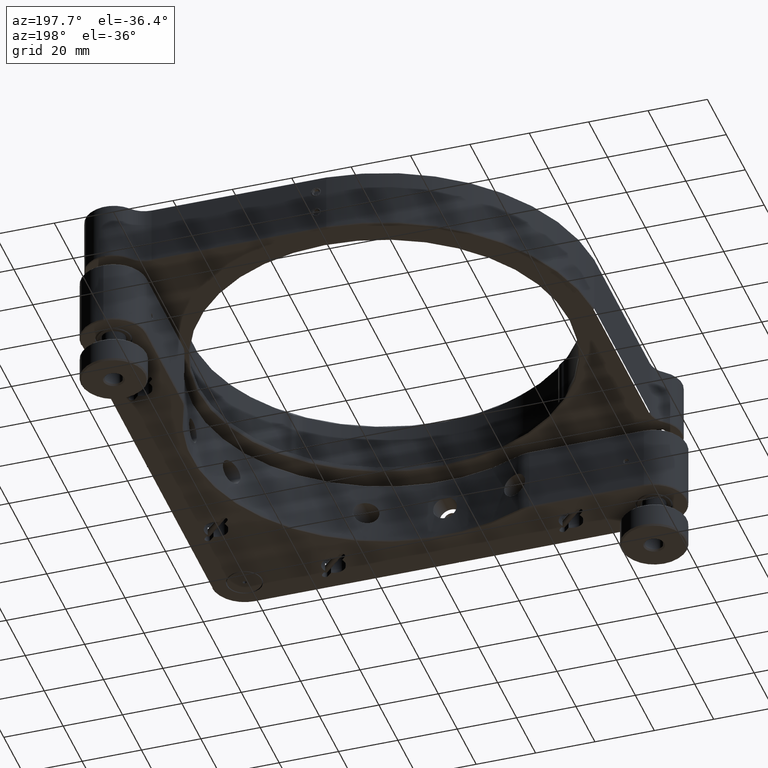
[diagram: clean part render]
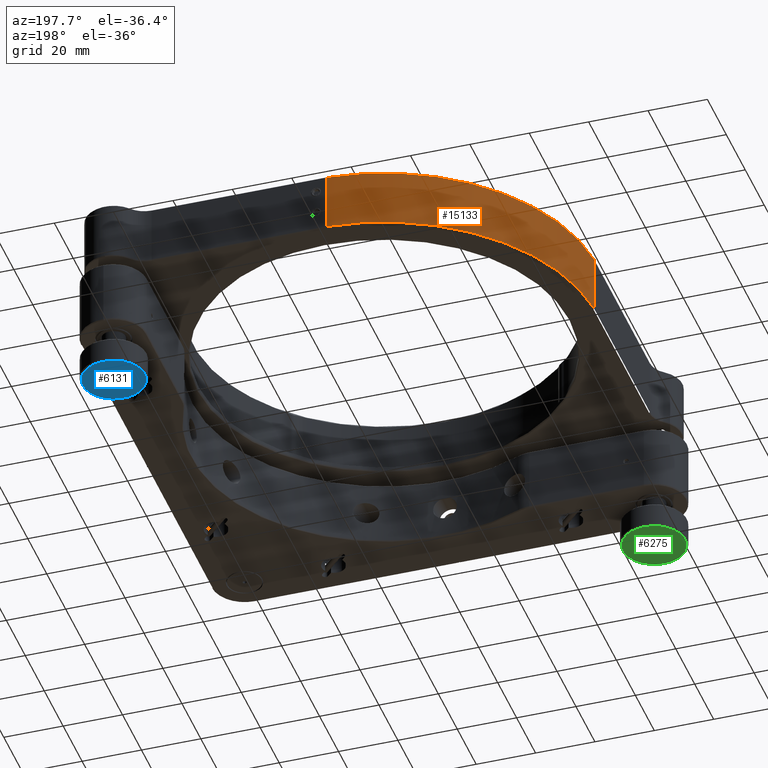
[diagram: same view with three faces highlighted in distinct colors, each labeled with its STEP entity id]
A machine part, auxiliary view with three faces highlighted in distinct colors.
Their STEP definitions:

[orange] entity #15133 — the highlighted cylindrical surface (partial cylindrical patch) has radius 72 mm, axis along (0, -0, 1).
#54 = CARTESIAN_POINT ( 'NONE',  ( -3.500000000000160760, 71.91488024046334715, 15.39949493661167246 ) ) ;
#354 = AXIS2_PLACEMENT_3D ( 'NONE', #10482, #10110, #3396 ) ;
#639 = DIRECTION ( 'NONE',  ( 1.460576560598794809E-21, -9.396343987072984124E-36, 1.000000000000000000 ) ) ;
#905 = FACE_OUTER_BOUND ( 'NONE', #17086, .T. ) ;
#1100 = VERTEX_POINT ( 'NONE', #7289 ) ;
#1365 = DIRECTION ( 'NONE',  ( -6.383782391594627428E-16, 1.000000000000000000, 0.000000000000000000 ) ) ;
#2439 = CARTESIAN_POINT ( 'NONE',  ( -71.91488024046343241, 3.499999999999982681, 15.64949493661167423 ) ) ;
#2613 = ORIENTED_EDGE ( 'NONE', *, *, #14810, .T. ) ;
#2617 = CARTESIAN_POINT ( 'NONE',  ( -2.775557525048446447E-14, -5.551115123125781440E-14, 15.64949493661167423 ) ) ;
#2869 = ORIENTED_EDGE ( 'NONE', *, *, #3684, .F. ) ;
#2917 = LINE ( 'NONE', #8390, #12322 ) ;
#3396 = DIRECTION ( 'NONE',  ( -4.191091917959963574E-15, 1.000000000000000000, 0.000000000000000000 ) ) ;
#3605 = DIRECTION ( 'NONE',  ( -6.383782391594627428E-16, 1.000000000000000000, 0.000000000000000000 ) ) ;
#3684 = EDGE_CURVE ( 'NONE', #6504, #4486, #15084, .T. ) ;
#4486 = VERTEX_POINT ( 'NONE', #4937 ) ;
#4675 = AXIS2_PLACEMENT_3D ( 'NONE', #4761, #639, #3605 ) ;
#4761 = CARTESIAN_POINT ( 'NONE',  ( -2.775557561562890089E-14, -5.551115123125781440E-14, 15.39949493661167246 ) ) ;
#4937 = CARTESIAN_POINT ( 'NONE',  ( -3.500000000000160760, 71.91488024046334715, 35.14949493661170266 ) ) ;
#5478 = EDGE_CURVE ( 'NONE', #10128, #1100, #2917, .T. ) ;
#6504 = VERTEX_POINT ( 'NONE', #11453 ) ;
#6755 = DIRECTION ( 'NONE',  ( 1.460576560598794809E-21, -9.396343987072984124E-36, 1.000000000000000000 ) ) ;
#7223 = DIRECTION ( 'NONE',  ( 1.460576560598794809E-21, -9.396343987072984124E-36, 1.000000000000000000 ) ) ;
#7289 = CARTESIAN_POINT ( 'NONE',  ( -71.91488024046343241, 3.499999999999982681, 35.14949493661170266 ) ) ;
#8390 = CARTESIAN_POINT ( 'NONE',  ( -71.91488024046343241, 3.499999999999982681, 15.39949493661167246 ) ) ;
#10110 = DIRECTION ( 'NONE',  ( -1.460576560598794809E-21, 9.396343987072984124E-36, -1.000000000000000000 ) ) ;
#10128 = VERTEX_POINT ( 'NONE', #2439 ) ;
#10482 = CARTESIAN_POINT ( 'NONE',  ( -2.775554676924153404E-14, -5.551115123125781440E-14, 35.14949493661170266 ) ) ;
#10976 = ORIENTED_EDGE ( 'NONE', *, *, #5478, .T. ) ;
#11453 = CARTESIAN_POINT ( 'NONE',  ( -3.500000000000160760, 71.91488024046334715, 15.64949493661167423 ) ) ;
#12322 = VECTOR ( 'NONE', #7223, 1000.000000000000000 ) ;
#12499 = DIRECTION ( 'NONE',  ( 1.460576560598794809E-21, -9.396343987072984124E-36, 1.000000000000000000 ) ) ;
#12652 = CIRCLE ( 'NONE', #354, 72.00000000000154898 ) ;
#13584 = AXIS2_PLACEMENT_3D ( 'NONE', #2617, #6755, #1365 ) ;
#14810 = EDGE_CURVE ( 'NONE', #6504, #10128, #17287, .T. ) ;
#14812 = ORIENTED_EDGE ( 'NONE', *, *, #17648, .T. ) ;
#15084 = LINE ( 'NONE', #54, #17128 ) ;
#15133 = ADVANCED_FACE ( 'NONE', ( #905 ), #15859, .T. ) ;
#15859 = CYLINDRICAL_SURFACE ( 'NONE', #4675, 72.00000000000154898 ) ;
#17086 = EDGE_LOOP ( 'NONE', ( #2869, #2613, #10976, #14812 ) ) ;
#17128 = VECTOR ( 'NONE', #12499, 1000.000000000000000 ) ;
#17287 = CIRCLE ( 'NONE', #13584, 72.00000000000154898 ) ;
#17648 = EDGE_CURVE ( 'NONE', #1100, #4486, #12652, .T. ) ;

[blue] entity #6131 — the highlighted planar face has unit normal (-0, 0, 1).
#37 = CARTESIAN_POINT ( 'NONE',  ( 58.50053285702776407, 68.89421855717701249, -27.10050506338832221 ) ) ;
#630 = AXIS2_PLACEMENT_3D ( 'NONE', #2385, #6060, #12862 ) ;
#656 = CIRCLE ( 'NONE', #9801, 3.500000000000009770 ) ;
#1362 = EDGE_CURVE ( 'NONE', #15290, #17565, #15525, .T. ) ;
#1588 = CARTESIAN_POINT ( 'NONE',  ( 65.50017761900924995, 68.96473951905900890, -27.10050506338832221 ) ) ;
#1998 = ORIENTED_EDGE ( 'NONE', *, *, #7291, .T. ) ;
#2177 = EDGE_LOOP ( 'NONE', ( #7417, #4274 ) ) ;
#2385 = CARTESIAN_POINT ( 'NONE',  ( 69.00000000000001421, 69.00000000000001421, -27.10050506338832221 ) ) ;
#4274 = ORIENTED_EDGE ( 'NONE', *, *, #1362, .T. ) ;
#5260 = CIRCLE ( 'NONE', #9821, 10.49999999999998757 ) ;
#5560 = DIRECTION ( 'NONE',  ( 0.9999492517116447265, 0.01007442312600130736, 0.000000000000000000 ) ) ;
#6025 = CARTESIAN_POINT ( 'NONE',  ( 79.49946714297229278, 69.10578144282303015, -27.10050506338832221 ) ) ;
#6060 = DIRECTION ( 'NONE',  ( 9.708507162879196733E-50, -1.405738883550621758E-50, -1.000000000000000000 ) ) ;
#6131 = ADVANCED_FACE ( 'NONE', ( #8364, #13811 ), #11665, .F. ) ;
#6568 = ORIENTED_EDGE ( 'NONE', *, *, #15505, .T. ) ;
#6607 = DIRECTION ( 'NONE',  ( 0.9999492517116447265, 0.01007442312600126746, 0.000000000000000000 ) ) ;
#6936 = CIRCLE ( 'NONE', #630, 10.49999999999998757 ) ;
#7176 = DIRECTION ( 'NONE',  ( 0.9999492517116447265, 0.01007442312600126746, 0.000000000000000000 ) ) ;
#7257 = CARTESIAN_POINT ( 'NONE',  ( 69.00000000000001421, 69.00000000000001421, -27.10050506338832221 ) ) ;
#7291 = EDGE_CURVE ( 'NONE', #7465, #9861, #6936, .T. ) ;
#7417 = ORIENTED_EDGE ( 'NONE', *, *, #12940, .T. ) ;
#7465 = VERTEX_POINT ( 'NONE', #37 ) ;
#8364 = FACE_BOUND ( 'NONE', #2177, .T. ) ;
#8864 = EDGE_LOOP ( 'NONE', ( #6568, #1998 ) ) ;
#9801 = AXIS2_PLACEMENT_3D ( 'NONE', #14910, #13397, #6607 ) ;
#9821 = AXIS2_PLACEMENT_3D ( 'NONE', #7257, #16463, #5560 ) ;
#9856 = CARTESIAN_POINT ( 'NONE',  ( 69.00000000000001421, 69.00000000000001421, -27.10050506338832221 ) ) ;
#9861 = VERTEX_POINT ( 'NONE', #6025 ) ;
#10103 = AXIS2_PLACEMENT_3D ( 'NONE', #9856, #13957, #7176 ) ;
#10233 = DIRECTION ( 'NONE',  ( -9.708507162878788423E-50, 1.405738883550625793E-50, 1.000000000000000000 ) ) ;
#11182 = AXIS2_PLACEMENT_3D ( 'NONE', #11394, #10233, #12663 ) ;
#11394 = CARTESIAN_POINT ( 'NONE',  ( 69.00000000000001421, 69.00000000000001421, -27.10050506338832221 ) ) ;
#11665 = PLANE ( 'NONE',  #11182 ) ;
#12663 = DIRECTION ( 'NONE',  ( 0.9999492517116448376, 0.01007442312600105062, 9.693852464440226337E-50 ) ) ;
#12862 = DIRECTION ( 'NONE',  ( 0.9999492517116447265, 0.01007442312600130736, 0.000000000000000000 ) ) ;
#12940 = EDGE_CURVE ( 'NONE', #17565, #15290, #656, .T. ) ;
#13397 = DIRECTION ( 'NONE',  ( -9.708507162879196733E-50, 1.405738883550621758E-50, 1.000000000000000000 ) ) ;
#13811 = FACE_OUTER_BOUND ( 'NONE', #8864, .T. ) ;
#13957 = DIRECTION ( 'NONE',  ( -9.708507162879196733E-50, 1.405738883550621758E-50, 1.000000000000000000 ) ) ;
#14910 = CARTESIAN_POINT ( 'NONE',  ( 69.00000000000001421, 69.00000000000001421, -27.10050506338832221 ) ) ;
#15290 = VERTEX_POINT ( 'NONE', #17454 ) ;
#15505 = EDGE_CURVE ( 'NONE', #9861, #7465, #5260, .T. ) ;
#15525 = CIRCLE ( 'NONE', #10103, 3.500000000000009770 ) ;
#16463 = DIRECTION ( 'NONE',  ( 9.708507162879196733E-50, -1.405738883550621758E-50, -1.000000000000000000 ) ) ;
#17454 = CARTESIAN_POINT ( 'NONE',  ( 72.49982238099079268, 69.03526048094101952, -27.10050506338832221 ) ) ;
#17565 = VERTEX_POINT ( 'NONE', #1588 ) ;

[green] entity #6275 — the highlighted planar face has unit normal (-0, 0, 1).
#58 = DIRECTION ( 'NONE',  ( -9.708507162879227118E-50, 1.405738883550609888E-50, 1.000000000000000000 ) ) ;
#211 = ORIENTED_EDGE ( 'NONE', *, *, #5436, .T. ) ;
#326 = CARTESIAN_POINT ( 'NONE',  ( -68.99999999999998579, -69.00000000000001421, -27.10050506338832221 ) ) ;
#642 = CIRCLE ( 'NONE', #9495, 10.49999999999999467 ) ;
#745 = CARTESIAN_POINT ( 'NONE',  ( -58.59315663738008340, -67.60443157606161435, -27.10050506338832221 ) ) ;
#926 = DIRECTION ( 'NONE',  ( 0.9911279392971342750, 0.1329112784703246064, 9.435534145787382372E-50 ) ) ;
#1038 = VERTEX_POINT ( 'NONE', #745 ) ;
#1745 = AXIS2_PLACEMENT_3D ( 'NONE', #13104, #10429, #926 ) ;
#1825 = AXIS2_PLACEMENT_3D ( 'NONE', #9519, #14880, #3888 ) ;
#2053 = CARTESIAN_POINT ( 'NONE',  ( -72.46894778753997457, -69.46518947464615223, -27.10050506338832221 ) ) ;
#2180 = FACE_OUTER_BOUND ( 'NONE', #8252, .T. ) ;
#2970 = ORIENTED_EDGE ( 'NONE', *, *, #11516, .T. ) ;
#3888 = DIRECTION ( 'NONE',  ( 0.9911279392971343860, 0.1329112784703233296, 0.000000000000000000 ) ) ;
#5050 = FACE_BOUND ( 'NONE', #8471, .T. ) ;
#5436 = EDGE_CURVE ( 'NONE', #12062, #9484, #6899, .T. ) ;
#5590 = DIRECTION ( 'NONE',  ( 9.708507162879227118E-50, -1.405738883550609888E-50, -1.000000000000000000 ) ) ;
#5756 = DIRECTION ( 'NONE',  ( 0.9911279392971342750, 0.1329112784703250782, 0.000000000000000000 ) ) ;
#6275 = ADVANCED_FACE ( 'NONE', ( #5050, #2180 ), #11849, .F. ) ;
#6899 = CIRCLE ( 'NONE', #9733, 3.500000000000007550 ) ;
#6984 = CIRCLE ( 'NONE', #1825, 3.500000000000007550 ) ;
#7023 = DIRECTION ( 'NONE',  ( 9.708507162879227118E-50, -1.405738883550609888E-50, -1.000000000000000000 ) ) ;
#8252 = EDGE_LOOP ( 'NONE', ( #2970, #11155 ) ) ;
#8471 = EDGE_LOOP ( 'NONE', ( #211, #15752 ) ) ;
#9484 = VERTEX_POINT ( 'NONE', #11001 ) ;
#9495 = AXIS2_PLACEMENT_3D ( 'NONE', #13804, #5590, #15061 ) ;
#9519 = CARTESIAN_POINT ( 'NONE',  ( -68.99999999999998579, -69.00000000000001421, -27.10050506338832221 ) ) ;
#9728 = EDGE_CURVE ( 'NONE', #15856, #1038, #14853, .T. ) ;
#9733 = AXIS2_PLACEMENT_3D ( 'NONE', #326, #58, #15351 ) ;
#10429 = DIRECTION ( 'NONE',  ( -9.708507162878815011E-50, 1.405738883550664725E-50, 1.000000000000000000 ) ) ;
#11001 = CARTESIAN_POINT ( 'NONE',  ( -65.53105221246001122, -68.53481052535389040, -27.10050506338832221 ) ) ;
#11155 = ORIENTED_EDGE ( 'NONE', *, *, #9728, .T. ) ;
#11516 = EDGE_CURVE ( 'NONE', #1038, #15856, #642, .T. ) ;
#11849 = PLANE ( 'NONE',  #1745 ) ;
#12062 = VERTEX_POINT ( 'NONE', #2053 ) ;
#13104 = CARTESIAN_POINT ( 'NONE',  ( -68.99999999999998579, -69.00000000000001421, -27.10050506338832221 ) ) ;
#13804 = CARTESIAN_POINT ( 'NONE',  ( -68.99999999999998579, -69.00000000000001421, -27.10050506338832221 ) ) ;
#13890 = CARTESIAN_POINT ( 'NONE',  ( -68.99999999999998579, -69.00000000000001421, -27.10050506338832221 ) ) ;
#13984 = AXIS2_PLACEMENT_3D ( 'NONE', #13890, #7023, #5756 ) ;
#14853 = CIRCLE ( 'NONE', #13984, 10.49999999999998934 ) ;
#14880 = DIRECTION ( 'NONE',  ( -9.708507162879227118E-50, 1.405738883550609888E-50, 1.000000000000000000 ) ) ;
#15061 = DIRECTION ( 'NONE',  ( 0.9911279392971343860, 0.1329112784703236905, 0.000000000000000000 ) ) ;
#15351 = DIRECTION ( 'NONE',  ( 0.9911279392971343860, 0.1329112784703233296, 0.000000000000000000 ) ) ;
#15752 = ORIENTED_EDGE ( 'NONE', *, *, #16358, .T. ) ;
#15856 = VERTEX_POINT ( 'NONE', #15904 ) ;
#15904 = CARTESIAN_POINT ( 'NONE',  ( -79.40684336261989529, -70.39556842393842828, -27.10050506338832221 ) ) ;
#16358 = EDGE_CURVE ( 'NONE', #9484, #12062, #6984, .T. ) ;